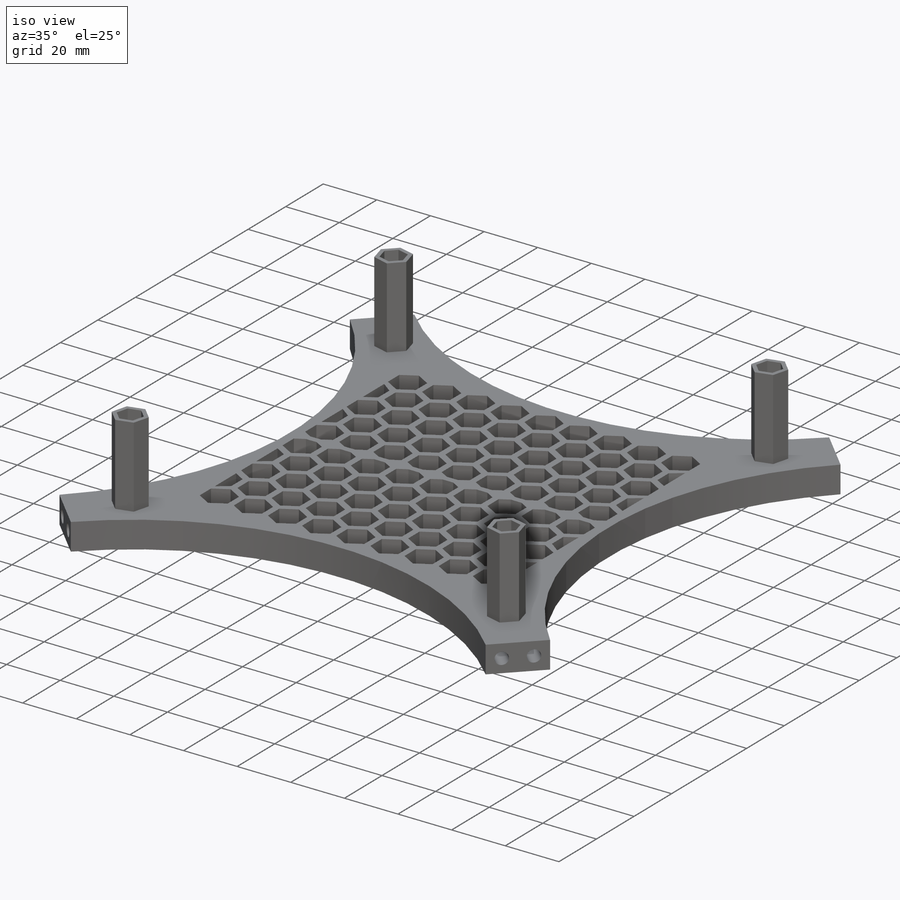
[diagram: iso view]
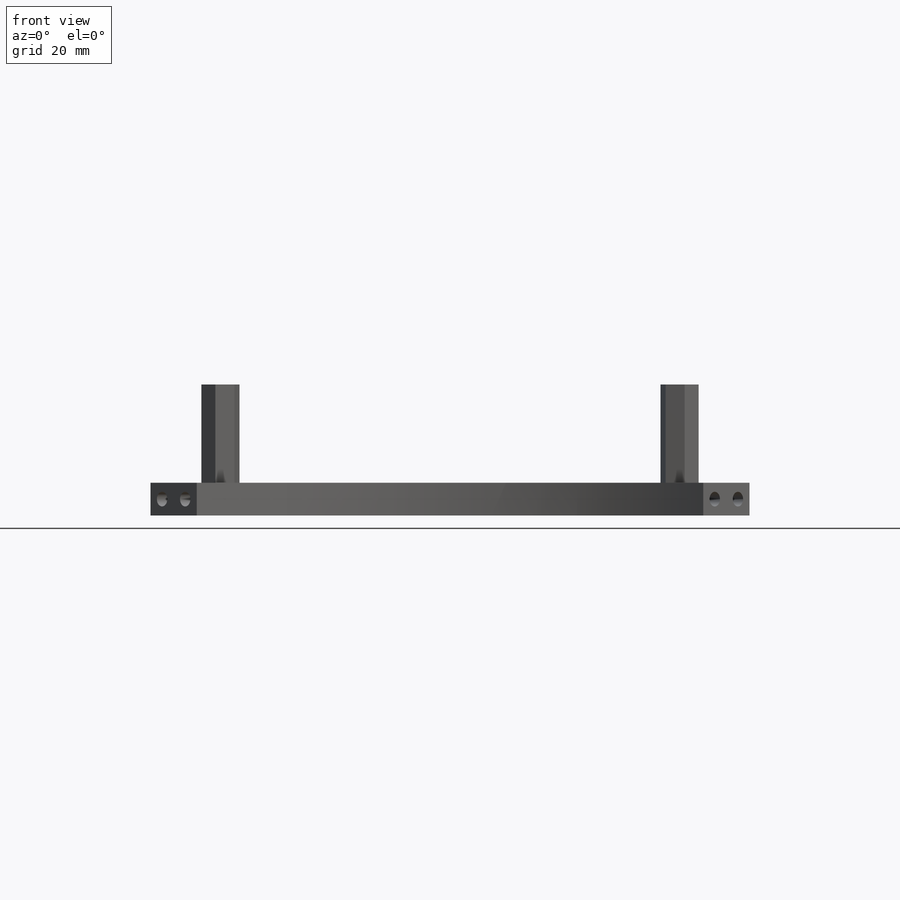
[diagram: front view]
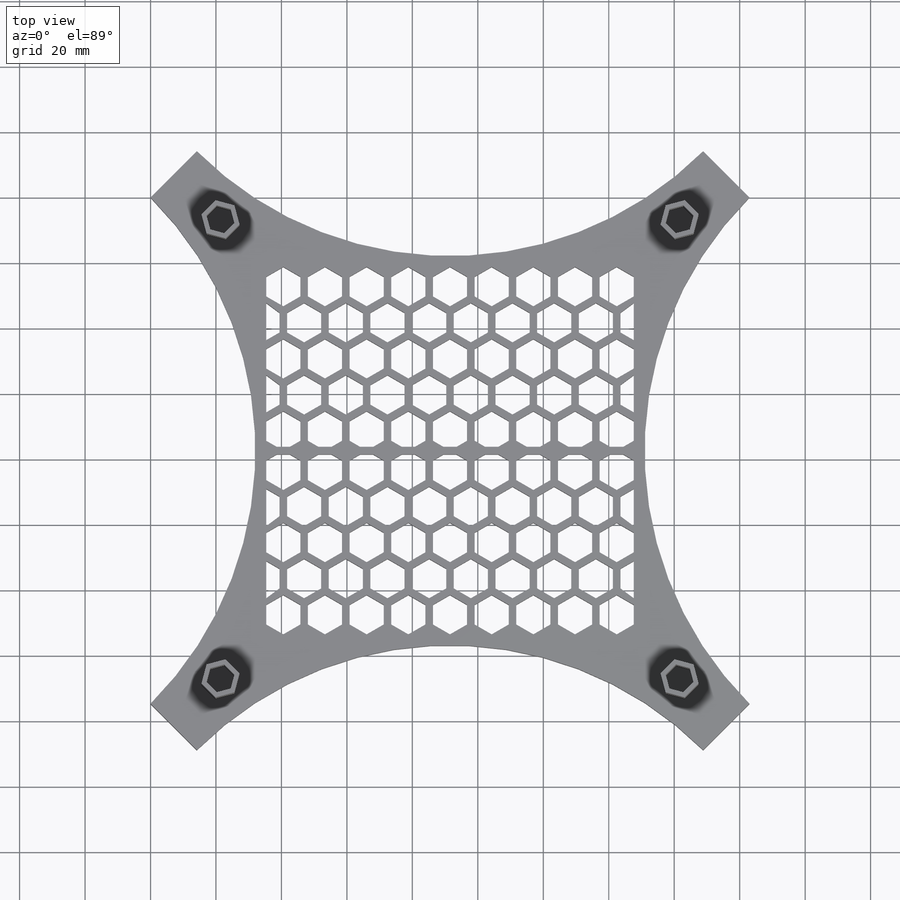
[diagram: top view]
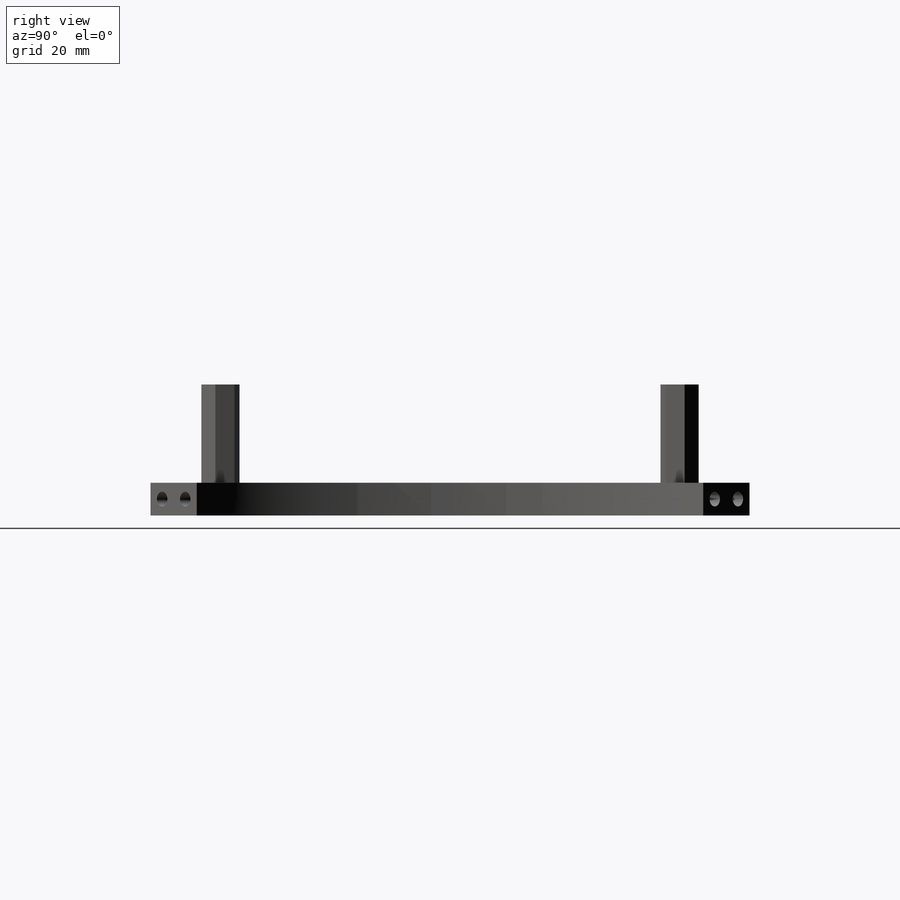
[diagram: right view]
SOLIDWORKS PART (.sldprt)
format: sldprt  version: not decoded by parser v0  size: 1,336,832 bytes
history: native  units: mm
features: sketch x6, extrude x3, plane x3, cut_extrude x2, pattern_circular x2, material x1, mirror x1 (+11 scaffold rows collapsed)
feature tree (29):
  scaffold x11  (default folders/planes/origin — collapsed)
  material  "PLA"
  sketch  "Sketch1"  dims[c1.D3=14.0mm c1.D7=~16.325899mm c2.D3=22.0mm c2.D1=183.0mm c2.D2=142.0mm c3.D3=2.5mm c3.D5=5.3mm c3.D6=5.0mm c3.D7=2.1mm c3.D8=~17.37081mm c4.D6=5.0mm c4.D7=~33.585324mm c5.D6=93.47mm c5.D8=~93.47439mm c5.D5=~8.11905mm c5.D7=~18.95602mm c6.D5=5.0mm c6.D7=90.34mm c6.D2=20.0mm c6.D3=45.0mm c6.D4=120.0mm c7.D5=108.42mm c7.D4=108.42mm c7.D8=45.0mm c8.D5=~108.514796mm c8.D4=~122.871338mm c9.D5=45.0mm c9.D9=~7.676975mm c10.D5=45.0mm c10.D3=~29.319915mm c11.D5=110.0mm]
  extrude  "Boss-Extrude1"  Depth=10mm
  sketch  "Sketch9"  dims[D1=40.0mm D2=9.0 D3=3.0]
  cut_extrude  "Cut-Extrude1"  [1 undecoded]
  sketch  "Sketch12"
  plane  "Plane1"  Offset=77.36mm
  mirror  "Mirror2"
  sketch  "Sketch10"  dims[D1=2.31mm]
  extrude  "Boss-Extrude2"  [1 undecoded]
  sketch  "Sketch11"  dims[D1=4.5mm]
  cut_extrude  "Cut-Extrude2"  Depth=15mm
  plane  "Plane2"
  plane  "Plane3"
  pattern_circular  "CirPattern1"  Count=4 Angle=90deg
  sketch  "Sketch13"  dims[D1=15.0mm D2=1.4mm]
  extrude  "Boss-Extrude3"  Depth=30mm
  pattern_circular  "CirPattern2"  Count=4 Angle=360deg
decode coverage: 10 of 14 modeling features carry decoded parameters
note: ~ marks probable driven/reference dimensions
note: 2 parameter values undecoded
note: suppression state not decoded; provenance and decode notes live in map.json
